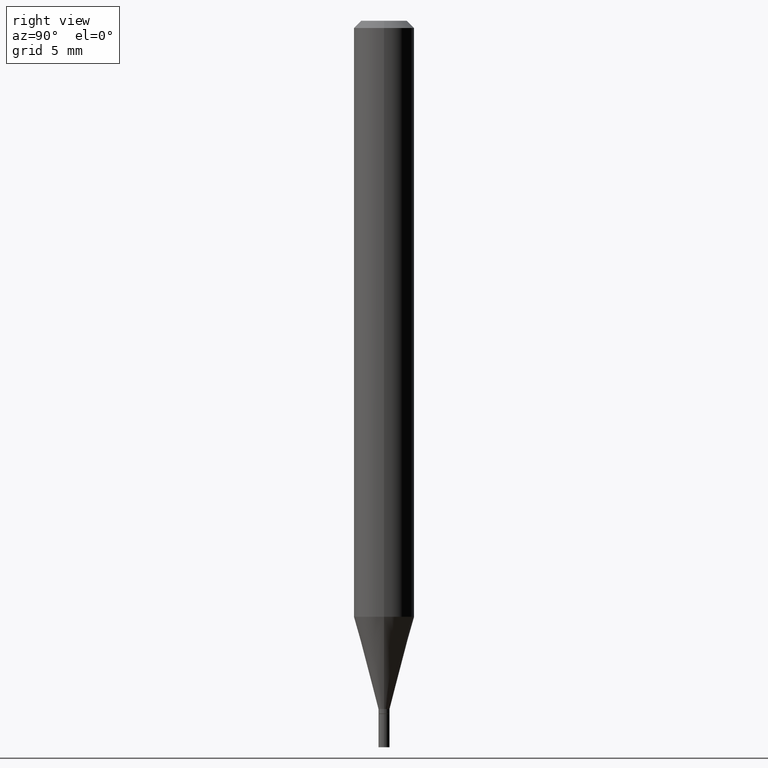
[diagram: clean part render]
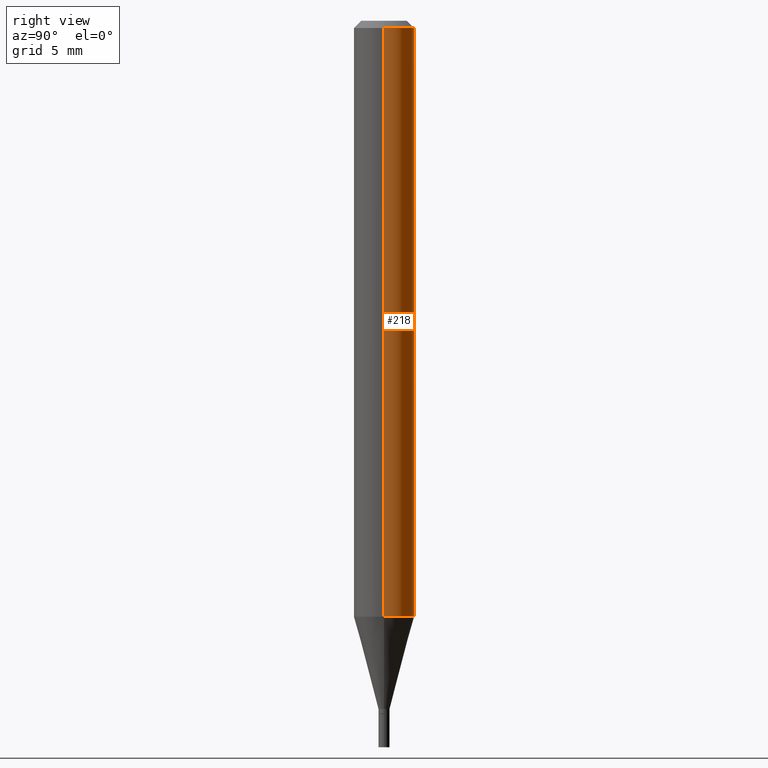
[diagram: same view with one face highlighted and labeled with its STEP entity id]
A machine part, right view. The second image highlights one B-rep face of the part: STEP entity #218.
In plain terms, the highlighted cylindrical surface (edge-blend (fillet) strip) has radius 1.5875 mm, axis along (-0, 0, 1).
Its self-contained STEP definition (entity closure, byte-faithful):
#18 = DIRECTION ( 'NONE',  ( 1.000000000000000000, -6.982962677686266711E-15, 4.876176775795935793E-29 ) ) ;
#22 = ORIENTED_EDGE ( 'NONE', *, *, #433, .F. ) ;
#77 = AXIS2_PLACEMENT_3D ( 'NONE', #118, #415, #83 ) ;
#80 = VERTEX_POINT ( 'NONE', #104 ) ;
#81 = DIRECTION ( 'NONE',  ( -2.445468806185136877E-29, 3.491481338843145188E-15, 1.000000000000000000 ) ) ;
#83 = DIRECTION ( 'NONE',  ( 1.000000000000000000, -6.982962677686266711E-15, 0.000000000000000000 ) ) ;
#92 = CARTESIAN_POINT ( 'NONE',  ( -0.06249999999999997918, -3.852756099383747210E-15, -1.230665408813987893 ) ) ;
#104 = CARTESIAN_POINT ( 'NONE',  ( -0.06250000000000000000, -1.730519554808165837E-15, -0.01499999999999999944 ) ) ;
#118 = CARTESIAN_POINT ( 'NONE',  ( 3.668203209277705088E-31, -5.237222008264718399E-17, -0.01499999999999999944 ) ) ;
#138 = EDGE_LOOP ( 'NONE', ( #360, #448, #396, #22 ) ) ;
#156 = DIRECTION ( 'NONE',  ( 1.000000000000000000, -6.982962677686262766E-15, 0.000000000000000000 ) ) ;
#160 = LINE ( 'NONE', #281, #196 ) ;
#162 = CARTESIAN_POINT ( 'NONE',  ( 0.000000000000000000, 0.000000000000000000, 0.000000000000000000 ) ) ;
#163 = CIRCLE ( 'NONE', #375, 0.06250000000000000000 ) ;
#167 = FACE_OUTER_BOUND ( 'NONE', #138, .T. ) ;
#195 = CARTESIAN_POINT ( 'NONE',  ( -0.06250000000000000000, 4.440892098500626162E-16, -3.074334431409316114E-30 ) ) ;
#196 = VECTOR ( 'NONE', #442, 39.37007874015748143 ) ;
#201 = CARTESIAN_POINT ( 'NONE',  ( 3.009553868105685827E-29, -4.296845309233809826E-15, -1.230665408813987893 ) ) ;
#218 = ADVANCED_FACE ( 'NONE', ( #167 ), #453, .T. ) ;
#229 = AXIS2_PLACEMENT_3D ( 'NONE', #162, #314, #18 ) ;
#237 = EDGE_CURVE ( 'NONE', #412, #80, #272, .T. ) ;
#268 = EDGE_CURVE ( 'NONE', #322, #412, #163, .T. ) ;
#269 = CARTESIAN_POINT ( 'NONE',  ( 0.06250000000000000000, -4.888073874380388472E-16, -0.01499999999999999944 ) ) ;
#272 = LINE ( 'NONE', #195, #451 ) ;
#278 = CARTESIAN_POINT ( 'NONE',  ( 0.06249999999999997918, -4.733280476589200707E-15, -1.230665408813987893 ) ) ;
#281 = CARTESIAN_POINT ( 'NONE',  ( 0.06250000000000000000, -4.364351673553916694E-16, 3.047610484872459871E-30 ) ) ;
#309 = EDGE_CURVE ( 'NONE', #336, #80, #366, .T. ) ;
#314 = DIRECTION ( 'NONE',  ( -2.445468806185136597E-29, 3.491481338843145583E-15, 1.000000000000000000 ) ) ;
#315 = DIRECTION ( 'NONE',  ( -2.445468806185136597E-29, 3.491481338843145583E-15, 1.000000000000000000 ) ) ;
#322 = VERTEX_POINT ( 'NONE', #278 ) ;
#336 = VERTEX_POINT ( 'NONE', #269 ) ;
#360 = ORIENTED_EDGE ( 'NONE', *, *, #268, .T. ) ;
#366 = CIRCLE ( 'NONE', #77, 0.06250000000000000000 ) ;
#375 = AXIS2_PLACEMENT_3D ( 'NONE', #201, #315, #156 ) ;
#396 = ORIENTED_EDGE ( 'NONE', *, *, #309, .F. ) ;
#412 = VERTEX_POINT ( 'NONE', #92 ) ;
#415 = DIRECTION ( 'NONE',  ( -2.445468806185136597E-29, 3.491481338843145583E-15, 1.000000000000000000 ) ) ;
#433 = EDGE_CURVE ( 'NONE', #322, #336, #160, .T. ) ;
#442 = DIRECTION ( 'NONE',  ( -2.445468806185136877E-29, 3.491481338843145188E-15, 1.000000000000000000 ) ) ;
#448 = ORIENTED_EDGE ( 'NONE', *, *, #237, .T. ) ;
#451 = VECTOR ( 'NONE', #81, 39.37007874015748143 ) ;
#453 = CYLINDRICAL_SURFACE ( 'NONE', #229, 0.06250000000000000000 ) ;